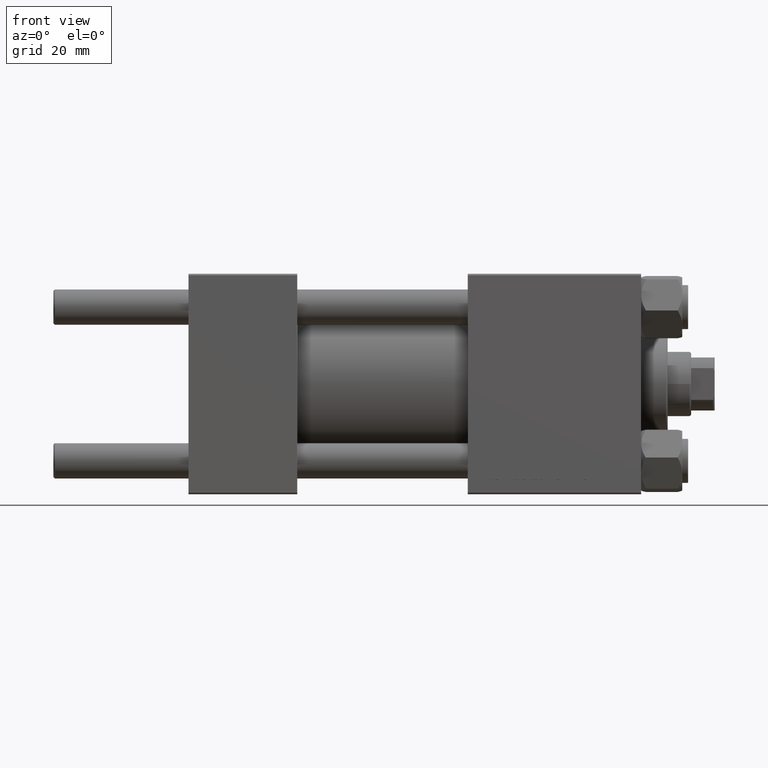
[diagram: clean part render]
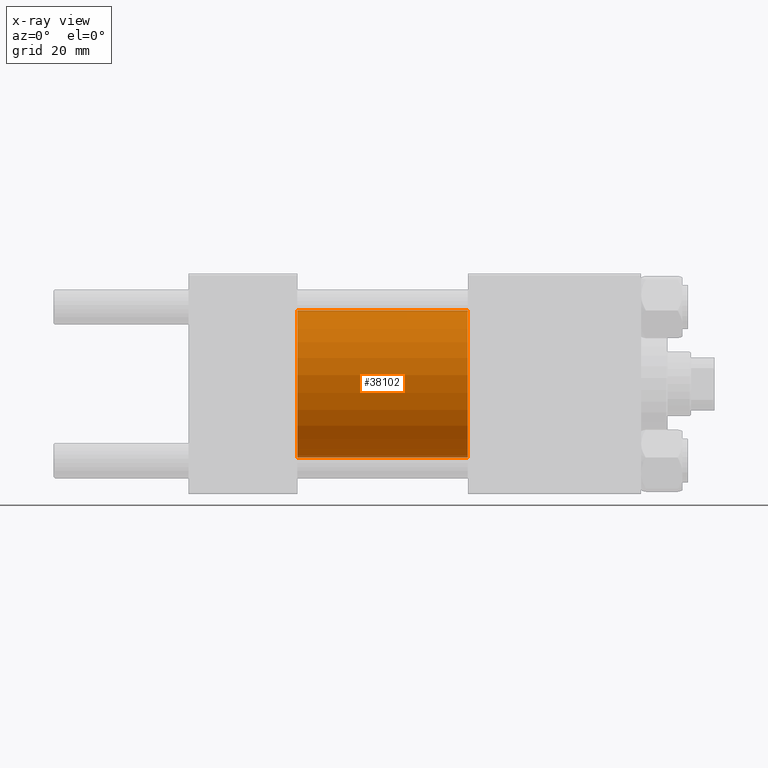
[diagram: x-ray — body ghosted, one internal face saturated and labeled with its STEP entity id]
A machine part, front view, then the same camera in x-ray: the body is ghosted and one INTERNAL B-rep face — a face not visible from any outside direction — is saturated and labeled: STEP entity #38102.
In plain terms, the highlighted cylindrical surface (partial cylindrical patch) has radius 25 mm, axis along (-1, -0, -0).
Its self-contained STEP definition (entity closure, byte-faithful):
#2221 = VERTEX_POINT ( 'NONE', #20927 ) ;
#4838 = DIRECTION ( 'NONE',  ( -1.000000000000000000, -0.000000000000000000, -0.000000000000000000 ) ) ;
#5332 = CARTESIAN_POINT ( 'NONE',  ( 95.00000000000000000, 0.000000000000000000, 25.00000000000000000 ) ) ;
#5616 = CARTESIAN_POINT ( 'NONE',  ( 37.00000000000000000, 3.061616997868382254E-15, -25.00000000000000000 ) ) ;
#6049 = EDGE_CURVE ( 'NONE', #35222, #25927, #17202, .T. ) ;
#7742 = DIRECTION ( 'NONE',  ( 0.000000000000000000, 0.000000000000000000, -1.000000000000000000 ) ) ;
#10153 = CARTESIAN_POINT ( 'NONE',  ( 37.00000000000000000, 0.000000000000000000, 0.000000000000000000 ) ) ;
#10856 = VECTOR ( 'NONE', #25617, 1000.000000000000000 ) ;
#13186 = AXIS2_PLACEMENT_3D ( 'NONE', #26916, #42304, #7742 ) ;
#14486 = DIRECTION ( 'NONE',  ( -1.000000000000000000, -0.000000000000000000, -0.000000000000000000 ) ) ;
#15023 = CARTESIAN_POINT ( 'NONE',  ( 95.00000000000000000, 0.000000000000000000, 25.00000000000000000 ) ) ;
#15441 = DIRECTION ( 'NONE',  ( 0.000000000000000000, 0.000000000000000000, -1.000000000000000000 ) ) ;
#17202 = LINE ( 'NONE', #5332, #35392 ) ;
#18271 = FACE_OUTER_BOUND ( 'NONE', #49369, .T. ) ;
#19015 = CARTESIAN_POINT ( 'NONE',  ( 95.00000000000000000, 0.000000000000000000, 0.000000000000000000 ) ) ;
#19629 = ORIENTED_EDGE ( 'NONE', *, *, #27233, .T. ) ;
#19820 = AXIS2_PLACEMENT_3D ( 'NONE', #10153, #41420, #15441 ) ;
#19874 = ORIENTED_EDGE ( 'NONE', *, *, #29087, .T. ) ;
#20927 = CARTESIAN_POINT ( 'NONE',  ( 95.00000000000000000, 3.061616997868382254E-15, -25.00000000000000000 ) ) ;
#25617 = DIRECTION ( 'NONE',  ( -1.000000000000000000, -0.000000000000000000, -0.000000000000000000 ) ) ;
#25927 = VERTEX_POINT ( 'NONE', #33264 ) ;
#26075 = CIRCLE ( 'NONE', #13186, 25.00000000000000000 ) ;
#26249 = CIRCLE ( 'NONE', #19820, 25.00000000000000000 ) ;
#26321 = AXIS2_PLACEMENT_3D ( 'NONE', #19015, #14486, #49298 ) ;
#26916 = CARTESIAN_POINT ( 'NONE',  ( 95.00000000000000000, 0.000000000000000000, 0.000000000000000000 ) ) ;
#27233 = EDGE_CURVE ( 'NONE', #35222, #2221, #26075, .T. ) ;
#29087 = EDGE_CURVE ( 'NONE', #2221, #34387, #36967, .T. ) ;
#33264 = CARTESIAN_POINT ( 'NONE',  ( 37.00000000000000000, 0.000000000000000000, 25.00000000000000000 ) ) ;
#33319 = EDGE_CURVE ( 'NONE', #25927, #34387, #26249, .T. ) ;
#33565 = ORIENTED_EDGE ( 'NONE', *, *, #33319, .F. ) ;
#34387 = VERTEX_POINT ( 'NONE', #5616 ) ;
#35222 = VERTEX_POINT ( 'NONE', #15023 ) ;
#35392 = VECTOR ( 'NONE', #4838, 1000.000000000000000 ) ;
#36967 = LINE ( 'NONE', #44308, #10856 ) ;
#38102 = ADVANCED_FACE ( 'NONE', ( #18271 ), #46011, .F. ) ;
#41420 = DIRECTION ( 'NONE',  ( 1.000000000000000000, 0.000000000000000000, 0.000000000000000000 ) ) ;
#42304 = DIRECTION ( 'NONE',  ( 1.000000000000000000, 0.000000000000000000, 0.000000000000000000 ) ) ;
#44308 = CARTESIAN_POINT ( 'NONE',  ( 95.00000000000000000, 3.061616997868382254E-15, -25.00000000000000000 ) ) ;
#46011 = CYLINDRICAL_SURFACE ( 'NONE', #26321, 25.00000000000000000 ) ;
#46610 = ORIENTED_EDGE ( 'NONE', *, *, #6049, .F. ) ;
#49298 = DIRECTION ( 'NONE',  ( 0.000000000000000000, 0.000000000000000000, 1.000000000000000000 ) ) ;
#49369 = EDGE_LOOP ( 'NONE', ( #19629, #19874, #33565, #46610 ) ) ;